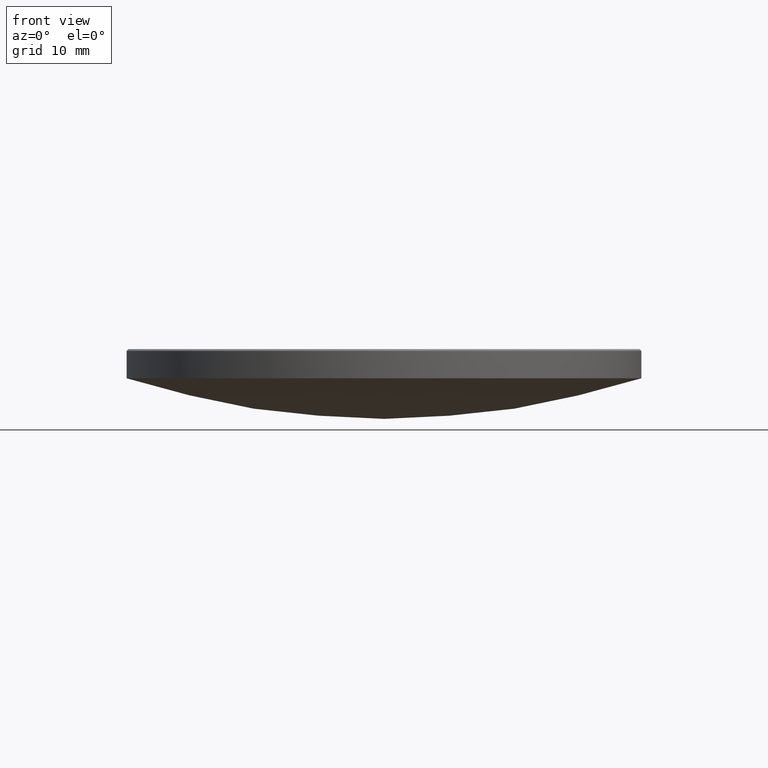
[diagram: clean part render]
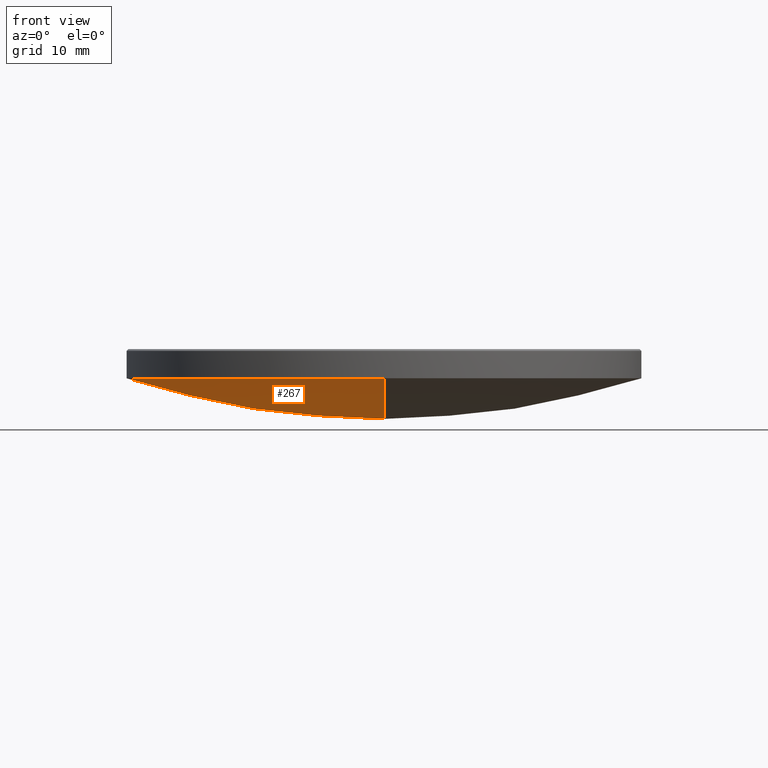
[diagram: same view with one face highlighted and labeled with its STEP entity id]
A machine part, front view. The second image highlights one B-rep face of the part: STEP entity #267.
In plain terms, the highlighted spherical surface has radius 82.54 mm.
Its self-contained STEP definition (entity closure, byte-faithful):
#1 = DIRECTION ( 'NONE',  ( 1.000000000000000000, -0.000000000000000000, 0.000000000000000000 ) ) ;
#9 = DIRECTION ( 'NONE',  ( -1.000000000000000000, 1.224646799147353207E-16, 0.000000000000000000 ) ) ;
#16 = VERTEX_POINT ( 'NONE', #144 ) ;
#25 = SPHERICAL_SURFACE ( 'NONE', #125, 82.54000000000000625 ) ;
#29 = DIRECTION ( 'NONE',  ( 1.000000000000000000, 0.000000000000000000, 0.000000000000000000 ) ) ;
#31 = DIRECTION ( 'NONE',  ( -1.224646799147352961E-16, -1.000000000000000000, 0.000000000000000000 ) ) ;
#32 = DIRECTION ( 'NONE',  ( -0.000000000000000000, -0.000000000000000000, 1.000000000000000000 ) ) ;
#37 = ORIENTED_EDGE ( 'NONE', *, *, #188, .F. ) ;
#56 = CARTESIAN_POINT ( 'NONE',  ( 0.000000000000000000, 0.000000000000000000, 91.53465222435252713 ) ) ;
#61 = CIRCLE ( 'NONE', #166, 25.39999999999999503 ) ;
#65 = EDGE_LOOP ( 'NONE', ( #37, #232, #165, #278 ) ) ;
#76 = CARTESIAN_POINT ( 'NONE',  ( 0.000000000000000000, 5.054117340081126317E-15, 8.994652224352527980 ) ) ;
#83 = FACE_OUTER_BOUND ( 'NONE', #65, .T. ) ;
#101 = EDGE_CURVE ( 'NONE', #16, #266, #281, .T. ) ;
#111 = CARTESIAN_POINT ( 'NONE',  ( 0.000000000000000000, 0.000000000000000000, 91.53465222435252713 ) ) ;
#116 = EDGE_CURVE ( 'NONE', #191, #266, #207, .T. ) ;
#125 = AXIS2_PLACEMENT_3D ( 'NONE', #149, #128, #279 ) ;
#128 = DIRECTION ( 'NONE',  ( -1.000000000000000000, 0.000000000000000000, 0.000000000000000000 ) ) ;
#130 = CARTESIAN_POINT ( 'NONE',  ( 0.000000000000000000, 0.000000000000000000, 13.00000000000000000 ) ) ;
#144 = CARTESIAN_POINT ( 'NONE',  ( -25.39999999999999503, 0.000000000000000000, 13.00000000000000000 ) ) ;
#145 = VERTEX_POINT ( 'NONE', #181 ) ;
#149 = CARTESIAN_POINT ( 'NONE',  ( 0.000000000000000000, 0.000000000000000000, 91.53465222435252713 ) ) ;
#158 = AXIS2_PLACEMENT_3D ( 'NONE', #130, #32, #282 ) ;
#160 = AXIS2_PLACEMENT_3D ( 'NONE', #111, #9, #31 ) ;
#165 = ORIENTED_EDGE ( 'NONE', *, *, #101, .F. ) ;
#166 = AXIS2_PLACEMENT_3D ( 'NONE', #260, #250, #29 ) ;
#181 = CARTESIAN_POINT ( 'NONE',  ( 0.000000000000000000, 25.39999999999999147, 12.99999999999999822 ) ) ;
#188 = EDGE_CURVE ( 'NONE', #191, #145, #241, .T. ) ;
#189 = AXIS2_PLACEMENT_3D ( 'NONE', #56, #1, #265 ) ;
#191 = VERTEX_POINT ( 'NONE', #76 ) ;
#207 = CIRCLE ( 'NONE', #160, 82.54000000000000625 ) ;
#217 = CARTESIAN_POINT ( 'NONE',  ( -3.110602869834276076E-15, -25.39999999999999147, 12.99999999999999822 ) ) ;
#229 = EDGE_CURVE ( 'NONE', #145, #16, #61, .T. ) ;
#232 = ORIENTED_EDGE ( 'NONE', *, *, #116, .T. ) ;
#241 = CIRCLE ( 'NONE', #189, 82.54000000000000625 ) ;
#250 = DIRECTION ( 'NONE',  ( -0.000000000000000000, -0.000000000000000000, 1.000000000000000000 ) ) ;
#260 = CARTESIAN_POINT ( 'NONE',  ( 0.000000000000000000, 0.000000000000000000, 13.00000000000000000 ) ) ;
#265 = DIRECTION ( 'NONE',  ( 0.000000000000000000, 0.000000000000000000, -1.000000000000000000 ) ) ;
#266 = VERTEX_POINT ( 'NONE', #217 ) ;
#267 = ADVANCED_FACE ( 'NONE', ( #83 ), #25, .T. ) ;
#278 = ORIENTED_EDGE ( 'NONE', *, *, #229, .F. ) ;
#279 = DIRECTION ( 'NONE',  ( 0.000000000000000000, 1.000000000000000000, 0.000000000000000000 ) ) ;
#281 = CIRCLE ( 'NONE', #158, 25.39999999999999503 ) ;
#282 = DIRECTION ( 'NONE',  ( 1.000000000000000000, 0.000000000000000000, 0.000000000000000000 ) ) ;